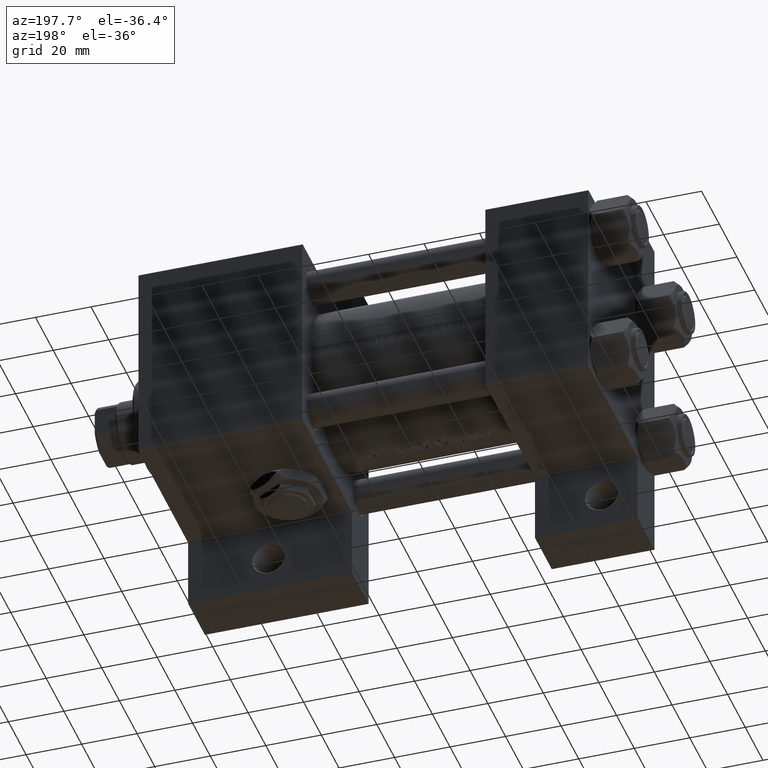
[diagram: clean part render]
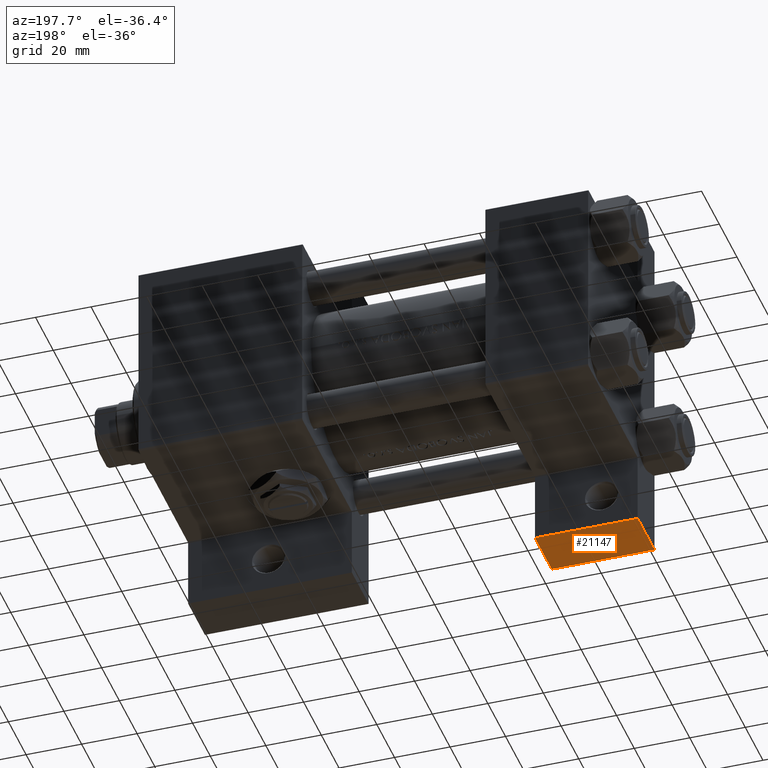
[diagram: same view with one face highlighted and labeled with its STEP entity id]
A machine part, auxiliary view. The second image highlights one B-rep face of the part: STEP entity #21147.
In plain terms, the highlighted planar face has unit normal (0, -0, -1).
Its self-contained STEP definition (entity closure, byte-faithful):
#234 = PLANE ( 'NONE',  #34990 ) ;
#2093 = LINE ( 'NONE', #32014, #42161 ) ;
#5370 = VECTOR ( 'NONE', #48362, 1000.000000000000000 ) ;
#5612 = CARTESIAN_POINT ( 'NONE',  ( 1.595073532467135441E-14, 63.50000000000000000, -18.50000000000000355 ) ) ;
#7490 = CARTESIAN_POINT ( 'NONE',  ( 1.595073532467135441E-14, 63.50000000000000000, -37.50000000000002132 ) ) ;
#8579 = EDGE_CURVE ( 'NONE', #28579, #37218, #30801, .T. ) ;
#8606 = VERTEX_POINT ( 'NONE', #45980 ) ;
#13717 = ORIENTED_EDGE ( 'NONE', *, *, #8579, .F. ) ;
#15979 = ORIENTED_EDGE ( 'NONE', *, *, #40577, .F. ) ;
#16072 = DIRECTION ( 'NONE',  ( 0.000000000000000000, -1.734723475976806848E-16, -1.000000000000000000 ) ) ;
#16245 = EDGE_LOOP ( 'NONE', ( #21803, #33920, #15979, #13717 ) ) ;
#17128 = EDGE_CURVE ( 'NONE', #8606, #28579, #18576, .T. ) ;
#18576 = LINE ( 'NONE', #31036, #27701 ) ;
#20609 = EDGE_CURVE ( 'NONE', #8606, #39576, #2093, .T. ) ;
#21147 = ADVANCED_FACE ( 'NONE', ( #30869 ), #234, .T. ) ;
#21803 = ORIENTED_EDGE ( 'NONE', *, *, #17128, .F. ) ;
#23392 = DIRECTION ( 'NONE',  ( 0.000000000000000000, 1.000000000000000000, -1.734723475976806848E-16 ) ) ;
#24718 = CARTESIAN_POINT ( 'NONE',  ( 1.595073532467135441E-14, 63.50000000000000000, -37.50000000000002132 ) ) ;
#25900 = CARTESIAN_POINT ( 'NONE',  ( 37.00000000000001421, 63.50000000000000000, -37.50000000000002132 ) ) ;
#27701 = VECTOR ( 'NONE', #34762, 1000.000000000000000 ) ;
#28579 = VERTEX_POINT ( 'NONE', #5612 ) ;
#30801 = LINE ( 'NONE', #42476, #36295 ) ;
#30869 = FACE_OUTER_BOUND ( 'NONE', #16245, .T. ) ;
#31036 = CARTESIAN_POINT ( 'NONE',  ( 1.595073532467135441E-14, 63.50000000000000000, -18.50000000000000355 ) ) ;
#32014 = CARTESIAN_POINT ( 'NONE',  ( 37.00000000000001421, 63.50000000000001421, 26.72167621838005047 ) ) ;
#33879 = CARTESIAN_POINT ( 'NONE',  ( 1.595073532467135441E-14, 63.50000000000001421, 26.72167621838005047 ) ) ;
#33920 = ORIENTED_EDGE ( 'NONE', *, *, #20609, .T. ) ;
#34602 = DIRECTION ( 'NONE',  ( 0.000000000000000000, 1.734723475976806848E-16, 1.000000000000000000 ) ) ;
#34762 = DIRECTION ( 'NONE',  ( -1.000000000000000000, 0.000000000000000000, 0.000000000000000000 ) ) ;
#34990 = AXIS2_PLACEMENT_3D ( 'NONE', #33879, #23392, #34602 ) ;
#36295 = VECTOR ( 'NONE', #16072, 1000.000000000000000 ) ;
#37218 = VERTEX_POINT ( 'NONE', #7490 ) ;
#39576 = VERTEX_POINT ( 'NONE', #25900 ) ;
#39702 = DIRECTION ( 'NONE',  ( 0.000000000000000000, -1.734723475976806848E-16, -1.000000000000000000 ) ) ;
#40577 = EDGE_CURVE ( 'NONE', #37218, #39576, #47859, .T. ) ;
#42161 = VECTOR ( 'NONE', #39702, 1000.000000000000000 ) ;
#42476 = CARTESIAN_POINT ( 'NONE',  ( 1.595073532467135441E-14, 63.50000000000001421, 26.72167621838005047 ) ) ;
#45980 = CARTESIAN_POINT ( 'NONE',  ( 37.00000000000001421, 63.50000000000000000, -18.50000000000000355 ) ) ;
#47859 = LINE ( 'NONE', #24718, #5370 ) ;
#48362 = DIRECTION ( 'NONE',  ( 1.000000000000000000, 0.000000000000000000, 0.000000000000000000 ) ) ;